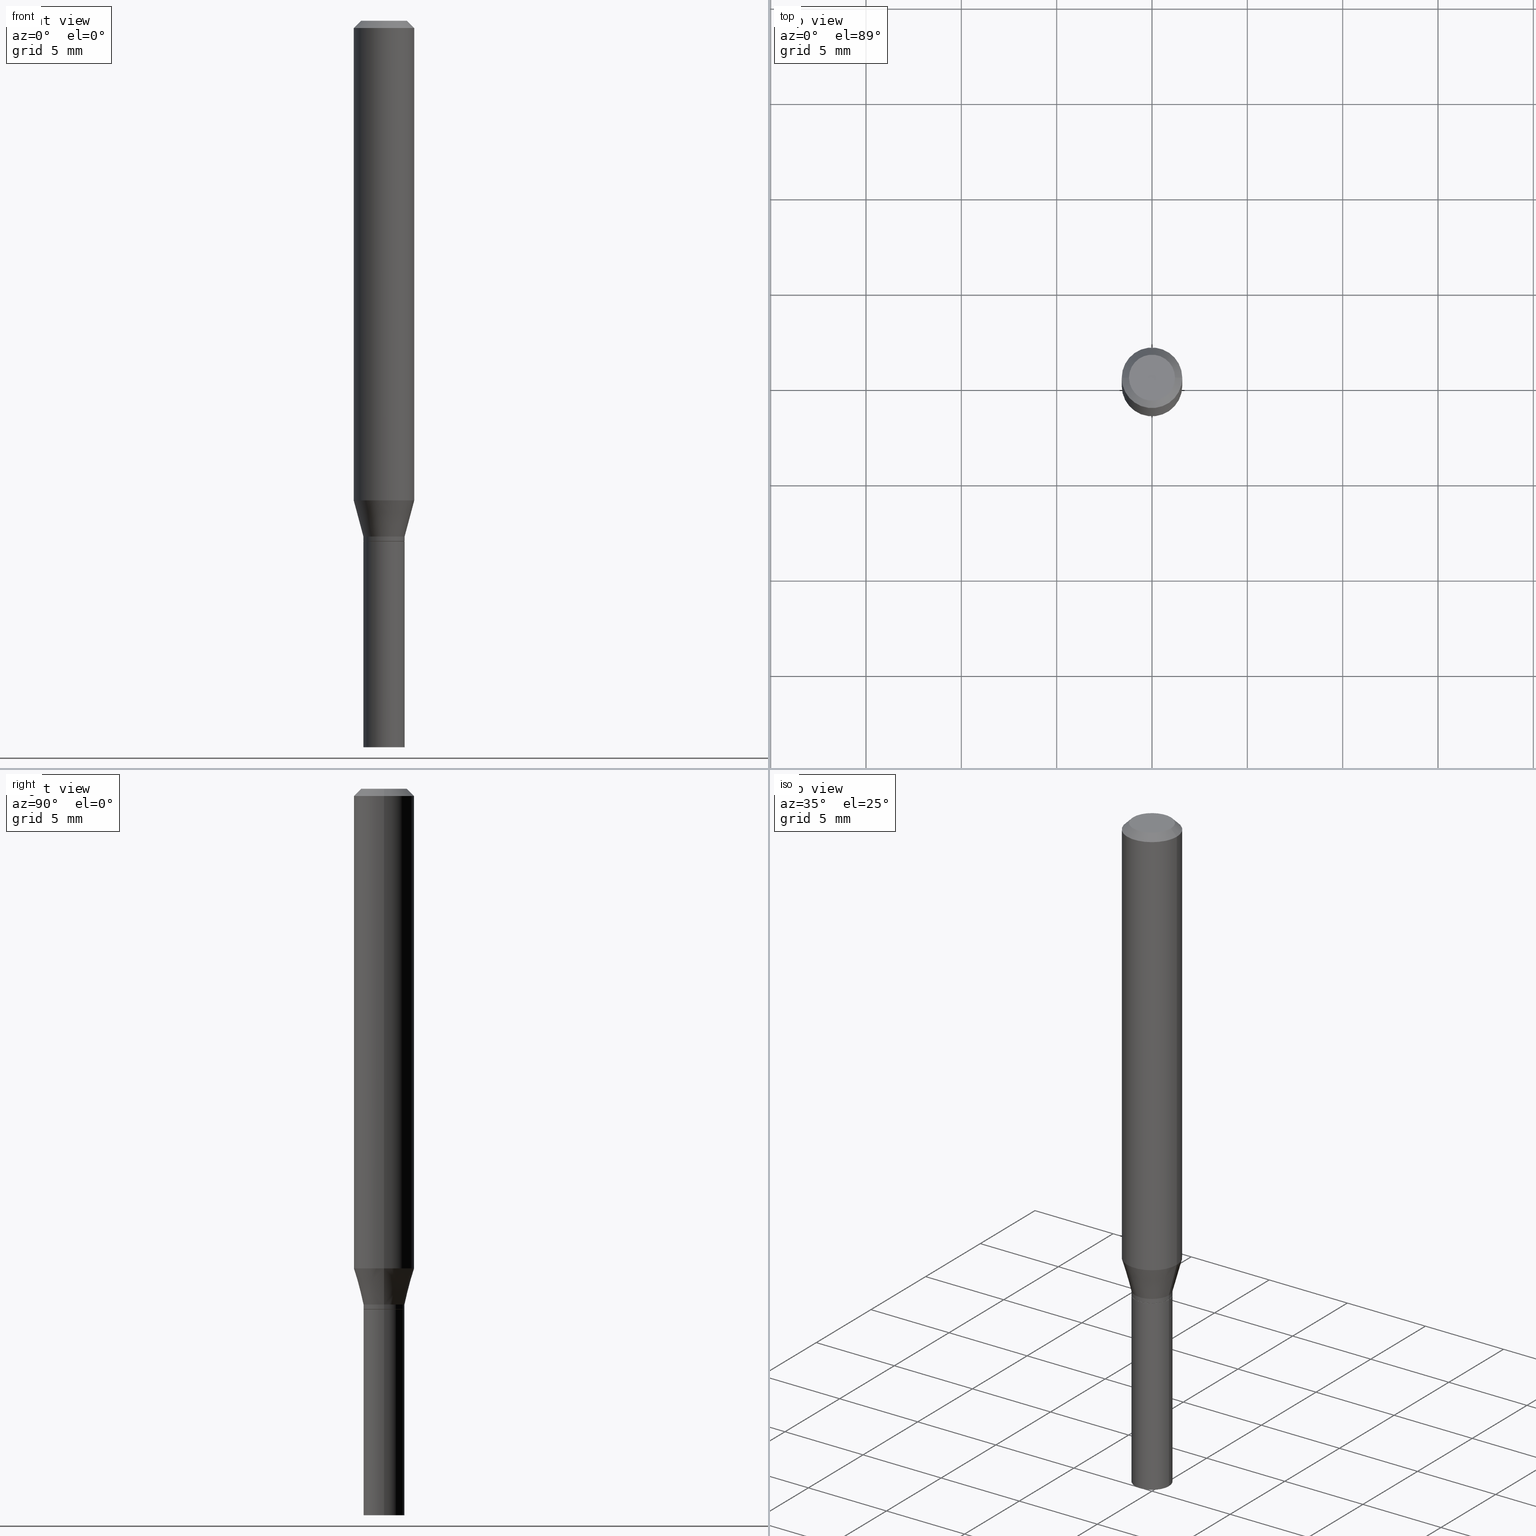
[diagram: canonical four-view strip — front | top / right | iso, engineering-drawing reading convention]
A machine part, canonical four-view strip (front | top / right | iso — engineering-drawing reading convention). The complete STEP part file that produces these views, byte-faithful:
ISO-10303-21;
HEADER;
FILE_DESCRIPTION (( 'STEP AP203' ),
    '1' );
FILE_NAME ('02659.STEP',
    '2024-03-18T21:09:29',
    ( '' ),
    ( '' ),
    'SwSTEP 2.0',
    'SolidWorks 2023',
    '' );
FILE_SCHEMA (( 'CONFIG_CONTROL_DESIGN' ));
ENDSEC;

DATA;
#1 = ADVANCED_FACE ( 'NONE', ( #379 ), #214, .T. ) ;
#2 = DIRECTION ( 'NONE',  ( -2.445468806185136597E-29, 3.491481338843145583E-15, 1.000000000000000000 ) ) ;
#3 = CARTESIAN_POINT ( 'NONE',  ( 2.628878966649022066E-29, -3.753342439256381768E-15, -1.075000000000000178 ) ) ;
#4 = CARTESIAN_POINT ( 'NONE',  ( 2.628878966649022066E-29, -3.753342439256381768E-15, -1.075000000000000178 ) ) ;
#5 = CIRCLE ( 'NONE', #45, 0.04250000000000007938 ) ;
#6 = CARTESIAN_POINT ( 'NONE',  ( 3.668203209277705088E-31, -5.237222008264718399E-17, -0.01499999999999999944 ) ) ;
#7 = DIRECTION ( 'NONE',  ( 1.000000000000000000, -6.982962677686261977E-15, 0.000000000000000000 ) ) ;
#8 = CARTESIAN_POINT ( 'NONE',  ( 2.421892001927016751E-29, -3.457819910863126899E-15, -0.9903589838486228647 ) ) ;
#9 = LINE ( 'NONE', #143, #419 ) ;
#10 = CONICAL_SURFACE ( 'NONE', #64, 0.04250000000000007938, 0.2617993877991496299 ) ;
#11 = CARTESIAN_POINT ( 'NONE',  ( 0.06250000000000000000, -4.888073874380388472E-16, -0.01499999999999999944 ) ) ;
#12 = CARTESIAN_POINT ( 'NONE',  ( 0.000000000000000000, 0.000000000000000000, 0.000000000000000000 ) ) ;
#13 =( LENGTH_UNIT ( ) NAMED_UNIT ( * ) SI_UNIT ( $, .METRE. ) );
#14 = FACE_OUTER_BOUND ( 'NONE', #303, .T. ) ;
#15 = EDGE_CURVE ( 'NONE', #315, #423, #350, .T. ) ;
#16 = VERTEX_POINT ( 'NONE', #330 ) ;
#17 = AXIS2_PLACEMENT_3D ( 'NONE', #280, #92, #186 ) ;
#18 = EDGE_LOOP ( 'NONE', ( #160, #445, #22, #389 ) ) ;
#19 = DIRECTION ( 'NONE',  ( 0.7071067811865656694, -2.468850131082446387E-15, 0.7071067811865294761 ) ) ;
#20 = DIRECTION ( 'NONE',  ( -2.445468806185136597E-29, 3.491481338843145583E-15, 1.000000000000000000 ) ) ;
#21 = ORIENTED_EDGE ( 'NONE', *, *, #200, .T. ) ;
#22 = ORIENTED_EDGE ( 'NONE', *, *, #458, .F. ) ;
#23 = SHAPE_DEFINITION_REPRESENTATION ( #427, #284 ) ;
#24 = APPROVAL_ROLE ( '' ) ;
#25 = VECTOR ( 'NONE', #173, 39.37007874015748143 ) ;
#26 =( GEOMETRIC_REPRESENTATION_CONTEXT ( 3 ) GLOBAL_UNCERTAINTY_ASSIGNED_CONTEXT ( ( #304 ) ) GLOBAL_UNIT_ASSIGNED_CONTEXT ( ( #456, #44, #430 ) ) REPRESENTATION_CONTEXT ( 'NONE', 'WORKASPACE' ) );
#27 = ORIENTED_EDGE ( 'NONE', *, *, #373, .F. ) ;
#28 = ORIENTED_EDGE ( 'NONE', *, *, #165, .T. ) ;
#29 = EDGE_CURVE ( 'NONE', #155, #117, #371, .T. ) ;
#30 = PERSON_AND_ORGANIZATION_ROLE ( 'design_supplier' ) ;
#31 = CC_DESIGN_APPROVAL ( #314, ( #461 ) ) ;
#32 = CARTESIAN_POINT ( 'NONE',  ( 2.604424278587170520E-29, -3.718427625867950118E-15, -1.065000000000000169 ) ) ;
#33 = DIRECTION ( 'NONE',  ( -1.000000000000000000, 6.982962677686266711E-15, 0.000000000000000000 ) ) ;
#34 = EDGE_CURVE ( 'NONE', #69, #16, #9, .T. ) ;
#35 = CARTESIAN_POINT ( 'NONE',  ( 2.604424278587170520E-29, -3.718427625867950118E-15, -1.065000000000000169 ) ) ;
#36 = CARTESIAN_POINT ( 'NONE',  ( 2.627656232245929264E-29, -3.751596698586960264E-15, -1.074500000000000011 ) ) ;
#37 = CONICAL_SURFACE ( 'NONE', #96, 0.04250000000000007938, 0.2617993877991496299 ) ;
#38 = CARTESIAN_POINT ( 'NONE',  ( 3.668203209277705088E-31, -5.237222008264718399E-17, -0.01499999999999999944 ) ) ;
#39 = ORIENTED_EDGE ( 'NONE', *, *, #107, .F. ) ;
#40 = DIRECTION ( 'NONE',  ( 1.000000000000000000, -6.982962677686267499E-15, 4.876176775795935793E-29 ) ) ;
#41 = LINE ( 'NONE', #364, #359 ) ;
#42 = EDGE_CURVE ( 'NONE', #315, #125, #446, .T. ) ;
#43 = CARTESIAN_POINT ( 'NONE',  ( -0.06250000000000000000, 3.840629472727444916E-16, -0.01499999999999999944 ) ) ;
#44 =( NAMED_UNIT ( * ) PLANE_ANGLE_UNIT ( ) SI_UNIT ( $, .RADIAN. ) );
#45 = AXIS2_PLACEMENT_3D ( 'NONE', #407, #249, #7 ) ;
#46 = LOCAL_TIME ( 17, 9, 29.00000000000000000, #197 ) ;
#47 = CC_DESIGN_DATE_AND_TIME_ASSIGNMENT ( #263, #228, ( #402 ) ) ;
#48 = FACE_OUTER_BOUND ( 'NONE', #321, .T. ) ;
#49 = DIRECTION ( 'NONE',  ( 1.000000000000000000, -6.982962677686266711E-15, 4.876176775795935793E-29 ) ) ;
#50 = EDGE_CURVE ( 'NONE', #69, #307, #241, .T. ) ;
#51 = FACE_OUTER_BOUND ( 'NONE', #368, .T. ) ;
#52 = ORIENTED_EDGE ( 'NONE', *, *, #29, .T. ) ;
#53 = DIRECTION ( 'NONE',  ( 2.438088387897960049E-29, -3.491481338843145188E-15, -1.000000000000000000 ) ) ;
#54 = PRODUCT_DEFINITION ( 'UNKNOWN', '', #461, #318 ) ;
#55 = CYLINDRICAL_SURFACE ( 'NONE', #401, 0.04250000000000006550 ) ;
#56 = PERSON_AND_ORGANIZATION ( #198, #148 ) ;
#57 = EDGE_LOOP ( 'NONE', ( #340, #82 ) ) ;
#58 = DIRECTION ( 'NONE',  ( -2.445468806185136597E-29, 3.491481338843145583E-15, 1.000000000000000000 ) ) ;
#59 = APPROVAL_STATUS ( 'not_yet_approved' ) ;
#60 = AXIS2_PLACEMENT_3D ( 'NONE', #286, #110, #146 ) ;
#61 = AXIS2_PLACEMENT_3D ( 'NONE', #138, #329, #283 ) ;
#62 = CALENDAR_DATE ( 2024, 18, 3 ) ;
#63 = FACE_OUTER_BOUND ( 'NONE', #57, .T. ) ;
#64 = AXIS2_PLACEMENT_3D ( 'NONE', #35, #441, #102 ) ;
#65 = EDGE_CURVE ( 'NONE', #159, #16, #207, .T. ) ;
#66 = FACE_OUTER_BOUND ( 'NONE', #429, .T. ) ;
#67 = DIRECTION ( 'NONE',  ( 1.000000000000000000, -6.982962677686263555E-15, 0.000000000000000000 ) ) ;
#68 = LINE ( 'NONE', #206, #25 ) ;
#69 = VERTEX_POINT ( 'NONE', #232 ) ;
#70 = APPROVAL ( #271, 'UNSPECIFIED' ) ;
#71 = LINE ( 'NONE', #245, #226 ) ;
#72 = VECTOR ( 'NONE', #279, 39.37007874015748143 ) ;
#73 = DIRECTION ( 'NONE',  ( -2.445468806185136597E-29, 3.491481338843145583E-15, 1.000000000000000000 ) ) ;
#74 = CYLINDRICAL_SURFACE ( 'NONE', #103, 0.04249999999999999611 ) ;
#75 = FACE_OUTER_BOUND ( 'NONE', #443, .T. ) ;
#76 = ADVANCED_FACE ( 'NONE', ( #267 ), #55, .T. ) ;
#77 = CARTESIAN_POINT ( 'NONE',  ( 0.04249999999999999611, -2.967759138016663549E-16, 2.072375129713272502E-30 ) ) ;
#78 = AXIS2_PLACEMENT_3D ( 'NONE', #412, #302, #295 ) ;
#79 = DIRECTION ( 'NONE',  ( 1.000000000000000000, -6.982962677686263555E-15, 0.000000000000000000 ) ) ;
#80 = PLANE ( 'NONE',  #248 ) ;
#81 = DIRECTION ( 'NONE',  ( -2.445468806185136877E-29, 3.491481338843145188E-15, 1.000000000000000000 ) ) ;
#82 = ORIENTED_EDGE ( 'NONE', *, *, #118, .F. ) ;
#83 = CIRCLE ( 'NONE', #61, 0.04249999999999999611 ) ;
#84 = ORIENTED_EDGE ( 'NONE', *, *, #415, .F. ) ;
#85 = APPROVAL_DATE_TIME ( #236, #70 ) ;
#86 = ORIENTED_EDGE ( 'NONE', *, *, #107, .T. ) ;
#87 = PERSON_AND_ORGANIZATION_ROLE ( 'creator' ) ;
#88 = VERTEX_POINT ( 'NONE', #376 ) ;
#89 = DIRECTION ( 'NONE',  ( 0.000000000000000000, 0.000000000000000000, 1.000000000000000000 ) ) ;
#90 = DIRECTION ( 'NONE',  ( -2.438088387897960049E-29, 3.491481338843145188E-15, 1.000000000000000000 ) ) ;
#91 = VECTOR ( 'NONE', #202, 39.37007874015748143 ) ;
#92 = DIRECTION ( 'NONE',  ( -2.445468806185136597E-29, 3.491481338843145583E-15, 1.000000000000000000 ) ) ;
#93 = CC_DESIGN_PERSON_AND_ORGANIZATION_ASSIGNMENT ( #397, #87, ( #54 ) ) ;
#94 = CARTESIAN_POINT ( 'NONE',  ( -0.06250000000000000000, -1.311006855622824570E-15, -0.01499999999999999944 ) ) ;
#95 = CARTESIAN_POINT ( 'NONE',  ( 0.000000000000000000, 0.000000000000000000, 0.000000000000000000 ) ) ;
#96 = AXIS2_PLACEMENT_3D ( 'NONE', #32, #166, #98 ) ;
#97 = CARTESIAN_POINT ( 'NONE',  ( -0.06250000000000000000, 4.440892098500626162E-16, -3.074334431409316114E-30 ) ) ;
#98 = DIRECTION ( 'NONE',  ( 1.000000000000000000, -6.982962677686261977E-15, 0.000000000000000000 ) ) ;
#99 = CARTESIAN_POINT ( 'NONE',  ( -0.04250000000000007938, -3.215088832091485777E-15, -1.065000000000000169 ) ) ;
#100 = ADVANCED_FACE ( 'NONE', ( #178 ), #333, .T. ) ;
#101 = VERTEX_POINT ( 'NONE', #253 ) ;
#102 = DIRECTION ( 'NONE',  ( 1.000000000000000000, -6.982962677686261977E-15, 0.000000000000000000 ) ) ;
#103 = AXIS2_PLACEMENT_3D ( 'NONE', #451, #20, #220 ) ;
#104 = LOCAL_TIME ( 17, 9, 29.00000000000000000, #390 ) ;
#105 = LINE ( 'NONE', #400, #72 ) ;
#106 = DIRECTION ( 'NONE',  ( -2.445468806185136597E-29, 3.491481338843145583E-15, 1.000000000000000000 ) ) ;
#107 = EDGE_CURVE ( 'NONE', #423, #101, #411, .T. ) ;
#108 = DIRECTION ( 'NONE',  ( 1.000000000000000000, -6.982962677686266711E-15, 4.876176775795935793E-29 ) ) ;
#109 = CARTESIAN_POINT ( 'NONE',  ( 0.06250000000000000000, -4.364351673553916694E-16, 3.047610484872459871E-30 ) ) ;
#110 = DIRECTION ( 'NONE',  ( -2.445468806185136597E-29, 3.491481338843145583E-15, 1.000000000000000000 ) ) ;
#111 = CONICAL_SURFACE ( 'NONE', #172, 0.06250000000000000000, 0.7853981633974450594 ) ;
#112 = CC_DESIGN_SECURITY_CLASSIFICATION ( #402, ( #461 ) ) ;
#113 = ORIENTED_EDGE ( 'NONE', *, *, #42, .F. ) ;
#114 = DIRECTION ( 'NONE',  ( 1.000000000000000000, -6.982962677686267499E-15, 4.884662768193073002E-29 ) ) ;
#115 = ORIENTED_EDGE ( 'NONE', *, *, #406, .F. ) ;
#116 = DIRECTION ( 'NONE',  ( 1.000000000000000000, -6.982962677686266711E-15, 4.876176775795935793E-29 ) ) ;
#117 = VERTEX_POINT ( 'NONE', #94 ) ;
#118 = EDGE_CURVE ( 'NONE', #229, #299, #431, .T. ) ;
#119 = CALENDAR_DATE ( 2024, 18, 3 ) ;
#120 = ORIENTED_EDGE ( 'NONE', *, *, #275, .F. ) ;
#121 = MANIFOLD_SOLID_BREP ( 'Body-Move/Copy2[1]', #162 ) ;
#122 = ORIENTED_EDGE ( 'NONE', *, *, #182, .F. ) ;
#123 = CARTESIAN_POINT ( 'NONE',  ( 0.000000000000000000, 0.000000000000000000, 0.000000000000000000 ) ) ;
#124 = PERSON_AND_ORGANIZATION ( #198, #148 ) ;
#125 = VERTEX_POINT ( 'NONE', #404 ) ;
#126 = APPROVAL_DATE_TIME ( #424, #314 ) ;
#127 = ADVANCED_FACE ( 'NONE', ( #361 ), #37, .T. ) ;
#128 = APPLICATION_PROTOCOL_DEFINITION ( 'international standard', 'config_control_design', 1994, #392 ) ;
#129 = COORDINATED_UNIVERSAL_TIME_OFFSET ( 5, 0, .BEHIND. ) ;
#130 = AXIS2_PLACEMENT_3D ( 'NONE', #6, #2, #136 ) ;
#131 = CARTESIAN_POINT ( 'NONE',  ( -0.04249999999999999611, -4.193301561062507519E-15, -1.500000000000000222 ) ) ;
#132 = DIRECTION ( 'NONE',  ( -2.445468806185136597E-29, 3.491481338843145583E-15, 1.000000000000000000 ) ) ;
#133 = DIRECTION ( 'NONE',  ( -2.445468806185136597E-29, 3.491481338843145583E-15, 1.000000000000000000 ) ) ;
#134 = AXIS2_PLACEMENT_3D ( 'NONE', #4, #436, #442 ) ;
#135 = EDGE_LOOP ( 'NONE', ( #247, #21, #313, #184 ) ) ;
#136 = DIRECTION ( 'NONE',  ( 1.000000000000000000, -6.982962677686266711E-15, 0.000000000000000000 ) ) ;
#137 = ADVANCED_FACE ( 'NONE', ( #203 ), #292, .F. ) ;
#138 = CARTESIAN_POINT ( 'NONE',  ( 2.628878966649022066E-29, -3.753342439256381768E-15, -1.075000000000000178 ) ) ;
#139 = EDGE_LOOP ( 'NONE', ( #113, #413, #86, #342 ) ) ;
#140 = CARTESIAN_POINT ( 'NONE',  ( -0.04199999999999999567, -3.452265263063028618E-15, -1.075000000000000178 ) ) ;
#141 = VECTOR ( 'NONE', #81, 39.37007874015748143 ) ;
#142 = AXIS2_PLACEMENT_3D ( 'NONE', #341, #106, #335 ) ;
#143 = CARTESIAN_POINT ( 'NONE',  ( 0.04250000000000007938, -4.015203539669616769E-15, -1.065000000000000169 ) ) ;
#144 = DIRECTION ( 'NONE',  ( -1.000000000000000000, 6.982962677686265922E-15, -4.876176775795935793E-29 ) ) ;
#145 = ORIENTED_EDGE ( 'NONE', *, *, #200, .F. ) ;
#146 = DIRECTION ( 'NONE',  ( 1.000000000000000000, -6.982962677686276177E-15, 0.000000000000000000 ) ) ;
#147 = AXIS2_PLACEMENT_3D ( 'NONE', #36, #405, #323 ) ;
#148 = ORGANIZATION ( 'UNSPECIFIED', 'UNSPECIFIED', '' ) ;
#149 = DIRECTION ( 'NONE',  ( 1.000000000000000000, -6.982962677686265922E-15, 0.000000000000000000 ) ) ;
#150 = ORIENTED_EDGE ( 'NONE', *, *, #42, .T. ) ;
#151 = EDGE_CURVE ( 'NONE', #380, #155, #287, .T. ) ;
#152 = LENGTH_MEASURE_WITH_UNIT ( LENGTH_MEASURE( 0.02539999999999999897 ), #13 );
#153 = ORIENTED_EDGE ( 'NONE', *, *, #458, .T. ) ;
#154 = EDGE_LOOP ( 'NONE', ( #188, #231, #345, #282 ) ) ;
#155 = VERTEX_POINT ( 'NONE', #219 ) ;
#156 = EDGE_LOOP ( 'NONE', ( #377, #268 ) ) ;
#157 = EDGE_CURVE ( 'NONE', #159, #117, #363, .T. ) ;
#158 = APPROVAL_ROLE ( '' ) ;
#159 = VERTEX_POINT ( 'NONE', #174 ) ;
#160 = ORIENTED_EDGE ( 'NONE', *, *, #169, .T. ) ;
#161 = DIRECTION ( 'NONE',  ( 1.000000000000000000, 0.000000000000000000, 0.000000000000000000 ) ) ;
#162 = CLOSED_SHELL ( 'NONE', ( #435, #137, #1, #434 ) ) ;
#163 = SECURITY_CLASSIFICATION_LEVEL ( 'unclassified' ) ;
#164 = CONICAL_SURFACE ( 'NONE', #325, 0.06250000000000000000, 0.7853981633974450594 ) ;
#165 = EDGE_CURVE ( 'NONE', #101, #125, #83, .T. ) ;
#166 = DIRECTION ( 'NONE',  ( -2.445468806185136597E-29, 3.491481338843145583E-15, 1.000000000000000000 ) ) ;
#167 = FACE_OUTER_BOUND ( 'NONE', #154, .T. ) ;
#168 = DIRECTION ( 'NONE',  ( -2.445468806185136597E-29, 3.491481338843145583E-15, 1.000000000000000000 ) ) ;
#169 = EDGE_CURVE ( 'NONE', #16, #159, #273, .T. ) ;
#170 = AXIS2_PLACEMENT_3D ( 'NONE', #336, #297, #40 ) ;
#171 = DIRECTION ( 'NONE',  ( -0.2588190451025209615, 5.211531920934547097E-15, 0.9659258262890682012 ) ) ;
#172 = AXIS2_PLACEMENT_3D ( 'NONE', #38, #439, #33 ) ;
#173 = DIRECTION ( 'NONE',  ( 0.7071067811865452413, -7.319954787623248157E-15, -0.7071067811865497932 ) ) ;
#174 = CARTESIAN_POINT ( 'NONE',  ( -0.06250000000000000000, -3.013730701013064283E-15, -0.9903589838486228647 ) ) ;
#175 = DIRECTION ( 'NONE',  ( -0.7071067811865452413, 2.468850131082233000E-15, -0.7071067811865497932 ) ) ;
#176 = DIRECTION ( 'NONE',  ( -2.445468806185136877E-29, 3.491481338843145188E-15, 1.000000000000000000 ) ) ;
#177 = VECTOR ( 'NONE', #175, 39.37007874015748143 ) ;
#178 = FACE_OUTER_BOUND ( 'NONE', #301, .T. ) ;
#179 = DIRECTION ( 'NONE',  ( -2.445468806185136597E-29, 3.491481338843145583E-15, 1.000000000000000000 ) ) ;
#180 = CARTESIAN_POINT ( 'NONE',  ( 0.04250000000000006550, -2.967759138016667987E-16, 2.072375129713276005E-30 ) ) ;
#181 = ORIENTED_EDGE ( 'NONE', *, *, #343, .T. ) ;
#182 = EDGE_CURVE ( 'NONE', #307, #159, #41, .T. ) ;
#183 = AXIS2_PLACEMENT_3D ( 'NONE', #261, #447, #114 ) ;
#184 = ORIENTED_EDGE ( 'NONE', *, *, #328, .F. ) ;
#185 = AXIS2_PLACEMENT_3D ( 'NONE', #223, #251, #79 ) ;
#186 = DIRECTION ( 'NONE',  ( 1.000000000000000000, -6.982962677686267499E-15, 4.884662768193073002E-29 ) ) ;
#187 = DIRECTION ( 'NONE',  ( 2.438088387897960049E-29, -3.491481338843145188E-15, -1.000000000000000000 ) ) ;
#188 = ORIENTED_EDGE ( 'NONE', *, *, #157, .F. ) ;
#189 = DIRECTION ( 'NONE',  ( -2.445468806185136597E-29, 3.491481338843145583E-15, 1.000000000000000000 ) ) ;
#190 = ORIENTED_EDGE ( 'NONE', *, *, #50, .T. ) ;
#191 = COORDINATED_UNIVERSAL_TIME_OFFSET ( 5, 0, .BEHIND. ) ;
#192 = DATE_AND_TIME ( #357, #104 ) ;
#193 = ORIENTED_EDGE ( 'NONE', *, *, #118, .T. ) ;
#194 = AXIS2_PLACEMENT_3D ( 'NONE', #464, #90, #398 ) ;
#195 = CALENDAR_DATE ( 2024, 18, 3 ) ;
#196 = ORIENTED_EDGE ( 'NONE', *, *, #205, .F. ) ;
#197 = COORDINATED_UNIVERSAL_TIME_OFFSET ( 5, 0, .BEHIND. ) ;
#198 = PERSON ( 'UNSPECIFIED', 'UNSPECIFIED', 'UNSPECIFIED', ('UNSPECIFIED'), ('UNSPECIFIED'), ('UNSPECIFIED') ) ;
#199 = PERSON_AND_ORGANIZATION_ROLE ( 'design_owner' ) ;
#200 = EDGE_CURVE ( 'NONE', #229, #260, #105, .T. ) ;
#201 = AXIS2_PLACEMENT_3D ( 'NONE', #308, #386, #457 ) ;
#202 = DIRECTION ( 'NONE',  ( -2.445468806185136877E-29, 3.491481338843145188E-15, 1.000000000000000000 ) ) ;
#203 = FACE_OUTER_BOUND ( 'NONE', #156, .T. ) ;
#204 = DIRECTION ( 'NONE',  ( 1.000000000000000000, -6.982962677686266711E-15, 4.876176775795935793E-29 ) ) ;
#205 = EDGE_CURVE ( 'NONE', #260, #307, #71, .T. ) ;
#206 = CARTESIAN_POINT ( 'NONE',  ( 0.06250000000000000000, -4.811533449433679005E-16, -0.01499999999999999944 ) ) ;
#207 = CIRCLE ( 'NONE', #201, 0.06250000000000000000 ) ;
#208 = CARTESIAN_POINT ( 'NONE',  ( -0.04250000000000005856, -3.449616035888917417E-15, -1.074500000000000011 ) ) ;
#209 = ORIENTED_EDGE ( 'NONE', *, *, #244, .T. ) ;
#210 = AXIS2_PLACEMENT_3D ( 'NONE', #259, #179, #149 ) ;
#211 = CARTESIAN_POINT ( 'NONE',  ( 2.628878966649022066E-29, -3.753342439256381768E-15, -1.075000000000000178 ) ) ;
#212 = ORIENTED_EDGE ( 'NONE', *, *, #285, .T. ) ;
#213 = DIRECTION ( 'NONE',  ( -2.445468806185136597E-29, 3.491481338843145583E-15, 1.000000000000000000 ) ) ;
#214 = CYLINDRICAL_SURFACE ( 'NONE', #170, 0.04249999999999999611 ) ;
#215 = CARTESIAN_POINT ( 'NONE',  ( 3.668203209277704895E-29, -5.237222008264718177E-15, -1.500000000000000222 ) ) ;
#216 = AXIS2_PLACEMENT_3D ( 'NONE', #211, #403, #246 ) ;
#217 = CONICAL_SURFACE ( 'NONE', #185, 0.04199999999999999567, 0.7853981633974739252 ) ;
#218 = DIRECTION ( 'NONE',  ( -2.445468806185136877E-29, 3.491481338843145188E-15, 1.000000000000000000 ) ) ;
#219 = CARTESIAN_POINT ( 'NONE',  ( -0.04749999999999999362, 3.578768372314212971E-16, 9.926955091278110846E-17 ) ) ;
#220 = DIRECTION ( 'NONE',  ( 1.000000000000000000, -6.982962677686267499E-15, 4.876176775795935793E-29 ) ) ;
#221 = ADVANCED_FACE ( 'NONE', ( #63 ), #409, .F. ) ;
#222 = ORIENTED_EDGE ( 'NONE', *, *, #50, .F. ) ;
#223 = CARTESIAN_POINT ( 'NONE',  ( 2.628878966649022066E-29, -3.753342439256381768E-15, -1.075000000000000178 ) ) ;
#224 = ORIENTED_EDGE ( 'NONE', *, *, #182, .T. ) ;
#225 = CARTESIAN_POINT ( 'NONE',  ( 0.04749999999999999362, -4.035134999187576651E-16, 9.926955091278610047E-17 ) ) ;
#226 = VECTOR ( 'NONE', #243, 39.37007874015748143 ) ;
#227 = DIRECTION ( 'NONE',  ( 1.000000000000000000, -6.982962677686261977E-15, 0.000000000000000000 ) ) ;
#228 = DATE_TIME_ROLE ( 'classification_date' ) ;
#229 = VERTEX_POINT ( 'NONE', #140 ) ;
#230 = APPROVAL ( #59, 'UNSPECIFIED' ) ;
#231 = ORIENTED_EDGE ( 'NONE', *, *, #65, .T. ) ;
#232 = CARTESIAN_POINT ( 'NONE',  ( 0.04250000000000007938, -4.015203539669616769E-15, -1.065000000000000169 ) ) ;
#233 = EDGE_LOOP ( 'NONE', ( #196, #349, #420, #378 ) ) ;
#234 = PERSON_AND_ORGANIZATION ( #198, #148 ) ;
#235 = CIRCLE ( 'NONE', #324, 0.04249999999999999611 ) ;
#236 = DATE_AND_TIME ( #62, #266 ) ;
#237 = ADVANCED_FACE ( 'NONE', ( #370 ), #242, .T. ) ;
#238 = ADVANCED_FACE ( 'NONE', ( #362 ), #10, .T. ) ;
#239 = CALENDAR_DATE ( 2024, 18, 3 ) ;
#240 = APPLICATION_CONTEXT ( 'configuration controlled 3d designs of mechanical parts and assemblies' ) ;
#241 = CIRCLE ( 'NONE', #393, 0.04250000000000007938 ) ;
#242 = CONICAL_SURFACE ( 'NONE', #216, 0.04199999999999999567, 0.7853981633974739252 ) ;
#243 = DIRECTION ( 'NONE',  ( -2.445468806185136877E-29, 3.491481338843145188E-15, 1.000000000000000000 ) ) ;
#244 = EDGE_CURVE ( 'NONE', #125, #101, #235, .T. ) ;
#245 = CARTESIAN_POINT ( 'NONE',  ( -0.04250000000000006550, 3.019806626980430444E-16, -2.090547413358338362E-30 ) ) ;
#246 = DIRECTION ( 'NONE',  ( 1.000000000000000000, -6.982962677686263555E-15, 0.000000000000000000 ) ) ;
#247 = ORIENTED_EDGE ( 'NONE', *, *, #384, .T. ) ;
#248 = AXIS2_PLACEMENT_3D ( 'NONE', #372, #187, #374 ) ;
#249 = DIRECTION ( 'NONE',  ( -2.445468806185136597E-29, 3.491481338843145583E-15, 1.000000000000000000 ) ) ;
#250 = ADVANCED_FACE ( 'NONE', ( #66 ), #111, .T. ) ;
#251 = DIRECTION ( 'NONE',  ( -2.445468806185136597E-29, 3.491481338843145583E-15, 1.000000000000000000 ) ) ;
#252 = DIRECTION ( 'NONE',  ( -2.445468806185136597E-29, 3.491481338843145583E-15, 1.000000000000000000 ) ) ;
#253 = CARTESIAN_POINT ( 'NONE',  ( 0.04249999999999999611, -4.050118353058048418E-15, -1.075000000000000178 ) ) ;
#254 = CARTESIAN_POINT ( 'NONE',  ( 0.04249999999999999611, -5.533997922066385616E-15, -1.500000000000000222 ) ) ;
#255 = CLOSED_SHELL ( 'NONE', ( #100, #237, #440, #317, #238, #127, #257, #250, #425, #221, #453, #76 ) ) ;
#256 = VECTOR ( 'NONE', #218, 39.37007874015748143 ) ;
#257 = ADVANCED_FACE ( 'NONE', ( #167 ), #322, .T. ) ;
#258 = CIRCLE ( 'NONE', #142, 0.06250000000000000000 ) ;
#259 = CARTESIAN_POINT ( 'NONE',  ( 2.627656232245929264E-29, -3.751596698586960264E-15, -1.074500000000000011 ) ) ;
#260 = VERTEX_POINT ( 'NONE', #208 ) ;
#261 = CARTESIAN_POINT ( 'NONE',  ( -2.427605901612193195E-45, 3.465977845273231710E-31, 9.926955091278351202E-17 ) ) ;
#262 = CARTESIAN_POINT ( 'NONE',  ( -0.04249999999999999611, 3.019806626980425514E-16, -2.090547413358334859E-30 ) ) ;
#263 = DATE_AND_TIME ( #119, #360 ) ;
#264 = EDGE_LOOP ( 'NONE', ( #309, #355 ) ) ;
#265 = CIRCLE ( 'NONE', #130, 0.06250000000000000000 ) ;
#266 = LOCAL_TIME ( 17, 9, 29.00000000000000000, #433 ) ;
#267 = FACE_OUTER_BOUND ( 'NONE', #233, .T. ) ;
#268 = ORIENTED_EDGE ( 'NONE', *, *, #15, .F. ) ;
#269 = ORIENTED_EDGE ( 'NONE', *, *, #29, .F. ) ;
#270 = PERSON_AND_ORGANIZATION ( #198, #148 ) ;
#271 = APPROVAL_STATUS ( 'not_yet_approved' ) ;
#272 = EDGE_CURVE ( 'NONE', #88, #260, #300, .T. ) ;
#273 = CIRCLE ( 'NONE', #450, 0.06250000000000000000 ) ;
#274 = APPLICATION_PROTOCOL_DEFINITION ( 'international standard', 'config_control_design', 1994, #240 ) ;
#275 = EDGE_CURVE ( 'NONE', #380, #417, #68, .T. ) ;
#276 = FACE_OUTER_BOUND ( 'NONE', #18, .T. ) ;
#277 = CIRCLE ( 'NONE', #210, 0.04250000000000005856 ) ;
#278 = APPROVAL_PERSON_ORGANIZATION ( #56, #314, #158 ) ;
#279 = DIRECTION ( 'NONE',  ( -0.7071067811865656694, 7.493145998870420424E-15, 0.7071067811865294761 ) ) ;
#280 = CARTESIAN_POINT ( 'NONE',  ( -2.427605901612193195E-45, 3.465977845273231710E-31, 9.926955091278351202E-17 ) ) ;
#281 = CARTESIAN_POINT ( 'NONE',  ( 0.04199999999999999567, -4.046626871719205411E-15, -1.075000000000000178 ) ) ;
#282 = ORIENTED_EDGE ( 'NONE', *, *, #296, .F. ) ;
#283 = DIRECTION ( 'NONE',  ( 1.000000000000000000, -6.982962677686265133E-15, 0.000000000000000000 ) ) ;
#284 = ADVANCED_BREP_SHAPE_REPRESENTATION ( '02659', ( #121, #437, #366 ), #26 ) ;
#285 = EDGE_CURVE ( 'NONE', #307, #69, #5, .T. ) ;
#286 = CARTESIAN_POINT ( 'NONE',  ( 3.668203209277704895E-29, -5.237222008264718177E-15, -1.500000000000000222 ) ) ;
#287 = CIRCLE ( 'NONE', #17, 0.04749999999999999362 ) ;
#288 = CARTESIAN_POINT ( 'NONE',  ( 2.628878966649022066E-29, -3.753342439256381768E-15, -1.075000000000000178 ) ) ;
#289 = CC_DESIGN_APPROVAL ( #230, ( #402 ) ) ;
#290 = DIRECTION ( 'NONE',  ( 0.2588190451025209615, 1.565188264969624926E-15, 0.9659258262890682012 ) ) ;
#291 = CARTESIAN_POINT ( 'NONE',  ( 0.04199999999999999567, -4.046626871719205411E-15, -1.075000000000000178 ) ) ;
#292 = PLANE ( 'NONE',  #194 ) ;
#293 = CC_DESIGN_PERSON_AND_ORGANIZATION_ASSIGNMENT ( #270, #30, ( #461 ) ) ;
#294 = DIRECTION ( 'NONE',  ( -2.445468806185136597E-29, 3.491481338843145583E-15, 1.000000000000000000 ) ) ;
#295 = DIRECTION ( 'NONE',  ( 1.000000000000000000, -6.982962677686263555E-15, 0.000000000000000000 ) ) ;
#296 = EDGE_CURVE ( 'NONE', #117, #417, #265, .T. ) ;
#297 = DIRECTION ( 'NONE',  ( -2.445468806185136597E-29, 3.491481338843145583E-15, 1.000000000000000000 ) ) ;
#298 = LINE ( 'NONE', #109, #141 ) ;
#299 = VERTEX_POINT ( 'NONE', #281 ) ;
#300 = CIRCLE ( 'NONE', #147, 0.04250000000000005856 ) ;
#301 = EDGE_LOOP ( 'NONE', ( #387, #394, #222, #115 ) ) ;
#302 = DIRECTION ( 'NONE',  ( -2.445468806185136597E-29, 3.491481338843145583E-15, 1.000000000000000000 ) ) ;
#303 = EDGE_LOOP ( 'NONE', ( #145, #193, #365, #27 ) ) ;
#304 = UNCERTAINTY_MEASURE_WITH_UNIT (LENGTH_MEASURE( 1.000000000000000082E-05 ), #456, 'distance_accuracy_value', 'NONE');
#305 = PRODUCT_RELATED_PRODUCT_CATEGORY ( 'detail', '', ( #310 ) ) ;
#306 = CARTESIAN_POINT ( 'NONE',  ( 3.668203209277705088E-31, -5.237222008264718399E-17, -0.01499999999999999944 ) ) ;
#307 = VERTEX_POINT ( 'NONE', #99 ) ;
#308 = CARTESIAN_POINT ( 'NONE',  ( 2.421892001927016751E-29, -3.457819910863126899E-15, -0.9903589838486228647 ) ) ;
#309 = ORIENTED_EDGE ( 'NONE', *, *, #415, .T. ) ;
#310 = PRODUCT ( '02659', '02659', '', ( #462 ) ) ;
#311 = AXIS2_PLACEMENT_3D ( 'NONE', #327, #213, #116 ) ;
#312 = ORIENTED_EDGE ( 'NONE', *, *, #34, .F. ) ;
#313 = ORIENTED_EDGE ( 'NONE', *, *, #272, .F. ) ;
#314 = APPROVAL ( #348, 'UNSPECIFIED' ) ;
#315 = VERTEX_POINT ( 'NONE', #131 ) ;
#316 = PERSON_AND_ORGANIZATION ( #198, #148 ) ;
#317 = ADVANCED_FACE ( 'NONE', ( #276 ), #367, .T. ) ;
#318 = DESIGN_CONTEXT ( 'detailed design', #392, 'design' ) ;
#319 = CC_DESIGN_APPROVAL ( #70, ( #54 ) ) ;
#320 = PERSON_AND_ORGANIZATION ( #198, #148 ) ;
#321 = EDGE_LOOP ( 'NONE', ( #381, #452, #153, #269 ) ) ;
#322 = CYLINDRICAL_SURFACE ( 'NONE', #421, 0.06250000000000000000 ) ;
#323 = DIRECTION ( 'NONE',  ( 1.000000000000000000, -6.982962677686265922E-15, 0.000000000000000000 ) ) ;
#324 = AXIS2_PLACEMENT_3D ( 'NONE', #288, #133, #326 ) ;
#325 = AXIS2_PLACEMENT_3D ( 'NONE', #306, #337, #414 ) ;
#326 = DIRECTION ( 'NONE',  ( 1.000000000000000000, -6.982962677686265133E-15, 0.000000000000000000 ) ) ;
#327 = CARTESIAN_POINT ( 'NONE',  ( 0.000000000000000000, 0.000000000000000000, 0.000000000000000000 ) ) ;
#328 = EDGE_CURVE ( 'NONE', #299, #88, #448, .T. ) ;
#329 = DIRECTION ( 'NONE',  ( -2.445468806185136597E-29, 3.491481338843145583E-15, 1.000000000000000000 ) ) ;
#330 = CARTESIAN_POINT ( 'NONE',  ( 0.06250000000000000000, -3.894255078218518174E-15, -0.9903589838486228647 ) ) ;
#331 = CIRCLE ( 'NONE', #78, 0.04199999999999999567 ) ;
#332 = LINE ( 'NONE', #180, #351 ) ;
#333 = CYLINDRICAL_SURFACE ( 'NONE', #438, 0.04250000000000006550 ) ;
#334 = CC_DESIGN_PERSON_AND_ORGANIZATION_ASSIGNMENT ( #234, #465, ( #461 ) ) ;
#335 = DIRECTION ( 'NONE',  ( 1.000000000000000000, -6.982962677686266711E-15, 0.000000000000000000 ) ) ;
#336 = CARTESIAN_POINT ( 'NONE',  ( 0.000000000000000000, 0.000000000000000000, 0.000000000000000000 ) ) ;
#337 = DIRECTION ( 'NONE',  ( 2.445468806185136597E-29, -3.491481338843145583E-15, -1.000000000000000000 ) ) ;
#338 = EDGE_LOOP ( 'NONE', ( #122, #212, #347, #382 ) ) ;
#339 = CIRCLE ( 'NONE', #460, 0.04249999999999999611 ) ;
#340 = ORIENTED_EDGE ( 'NONE', *, *, #384, .F. ) ;
#341 = CARTESIAN_POINT ( 'NONE',  ( 3.668203209277705088E-31, -5.237222008264718399E-17, -0.01499999999999999944 ) ) ;
#342 = ORIENTED_EDGE ( 'NONE', *, *, #244, .F. ) ;
#343 = EDGE_CURVE ( 'NONE', #423, #315, #339, .T. ) ;
#344 = ORIENTED_EDGE ( 'NONE', *, *, #169, .F. ) ;
#345 = ORIENTED_EDGE ( 'NONE', *, *, #353, .T. ) ;
#346 = DATE_AND_TIME ( #195, #375 ) ;
#347 = ORIENTED_EDGE ( 'NONE', *, *, #34, .T. ) ;
#348 = APPROVAL_STATUS ( 'not_yet_approved' ) ;
#349 = ORIENTED_EDGE ( 'NONE', *, *, #373, .T. ) ;
#350 = CIRCLE ( 'NONE', #60, 0.04249999999999999611 ) ;
#351 = VECTOR ( 'NONE', #176, 39.37007874015748143 ) ;
#352 = DIMENSIONAL_EXPONENTS ( 1.000000000000000000, 0.000000000000000000, 0.000000000000000000, 0.000000000000000000, 0.000000000000000000, 0.000000000000000000, 0.000000000000000000 ) ;
#353 = EDGE_CURVE ( 'NONE', #16, #417, #298, .T. ) ;
#354 = APPROVAL_DATE_TIME ( #346, #230 ) ;
#355 = ORIENTED_EDGE ( 'NONE', *, *, #151, .T. ) ;
#356 = PERSON_AND_ORGANIZATION_ROLE ( 'classification_officer' ) ;
#357 = CALENDAR_DATE ( 2024, 18, 3 ) ;
#358 = CC_DESIGN_PERSON_AND_ORGANIZATION_ASSIGNMENT ( #320, #356, ( #402 ) ) ;
#359 = VECTOR ( 'NONE', #171, 39.37007874015748143 ) ;
#360 = LOCAL_TIME ( 17, 9, 29.00000000000000000, #129 ) ;
#361 = FACE_OUTER_BOUND ( 'NONE', #338, .T. ) ;
#362 = FACE_OUTER_BOUND ( 'NONE', #385, .T. ) ;
#363 = LINE ( 'NONE', #97, #91 ) ;
#364 = CARTESIAN_POINT ( 'NONE',  ( -0.04250000000000007938, -3.416446963169907271E-15, -1.065000000000000169 ) ) ;
#365 = ORIENTED_EDGE ( 'NONE', *, *, #328, .T. ) ;
#366 = AXIS2_PLACEMENT_3D ( 'NONE', #463, #89, #161 ) ;
#367 = CYLINDRICAL_SURFACE ( 'NONE', #311, 0.06250000000000000000 ) ;
#368 = EDGE_LOOP ( 'NONE', ( #181, #150, #455, #39 ) ) ;
#369 = ORIENTED_EDGE ( 'NONE', *, *, #296, .T. ) ;
#370 = FACE_OUTER_BOUND ( 'NONE', #135, .T. ) ;
#371 = LINE ( 'NONE', #43, #177 ) ;
#372 = CARTESIAN_POINT ( 'NONE',  ( 2.967759138016925352E-16, 0.04249999999999624217, -1.075000000000000178 ) ) ;
#373 = EDGE_CURVE ( 'NONE', #260, #88, #277, .T. ) ;
#374 = DIRECTION ( 'NONE',  ( -1.000000000000000000, 6.982962677686265922E-15, -4.876176775795935793E-29 ) ) ;
#375 = LOCAL_TIME ( 17, 9, 29.00000000000000000, #191 ) ;
#376 = CARTESIAN_POINT ( 'NONE',  ( 0.04250000000000005856, -4.048372612388626915E-15, -1.074500000000000011 ) ) ;
#377 = ORIENTED_EDGE ( 'NONE', *, *, #343, .F. ) ;
#378 = ORIENTED_EDGE ( 'NONE', *, *, #285, .F. ) ;
#379 = FACE_OUTER_BOUND ( 'NONE', #139, .T. ) ;
#380 = VERTEX_POINT ( 'NONE', #225 ) ;
#381 = ORIENTED_EDGE ( 'NONE', *, *, #151, .F. ) ;
#382 = ORIENTED_EDGE ( 'NONE', *, *, #65, .F. ) ;
#383 = CARTESIAN_POINT ( 'NONE',  ( 3.316907271900976096E-16, 0.04749999999999999362, -1.162105881386576343E-16 ) ) ;
#384 = EDGE_CURVE ( 'NONE', #299, #229, #331, .T. ) ;
#385 = EDGE_LOOP ( 'NONE', ( #190, #224, #344, #312 ) ) ;
#386 = DIRECTION ( 'NONE',  ( -2.445468806185136597E-29, 3.491481338843145583E-15, 1.000000000000000000 ) ) ;
#387 = ORIENTED_EDGE ( 'NONE', *, *, #272, .T. ) ;
#388 = APPROVAL_ROLE ( '' ) ;
#389 = ORIENTED_EDGE ( 'NONE', *, *, #353, .F. ) ;
#390 = COORDINATED_UNIVERSAL_TIME_OFFSET ( 5, 0, .BEHIND. ) ;
#391 = CARTESIAN_POINT ( 'NONE',  ( 2.604424278587170520E-29, -3.718427625867950118E-15, -1.065000000000000169 ) ) ;
#392 = APPLICATION_CONTEXT ( 'configuration controlled 3d designs of mechanical parts and assemblies' ) ;
#393 = AXIS2_PLACEMENT_3D ( 'NONE', #391, #58, #227 ) ;
#394 = ORIENTED_EDGE ( 'NONE', *, *, #205, .T. ) ;
#395 = AXIS2_PLACEMENT_3D ( 'NONE', #3, #132, #67 ) ;
#396 = APPROVAL_PERSON_ORGANIZATION ( #124, #230, #388 ) ;
#397 = PERSON_AND_ORGANIZATION ( #198, #148 ) ;
#398 = DIRECTION ( 'NONE',  ( 1.000000000000000000, -6.982962677686265922E-15, 4.876176775795935793E-29 ) ) ;
#399 = PERSON_AND_ORGANIZATION ( #198, #148 ) ;
#400 = CARTESIAN_POINT ( 'NONE',  ( -0.04199999999999999567, -3.454914490237140213E-15, -1.075000000000000178 ) ) ;
#401 = AXIS2_PLACEMENT_3D ( 'NONE', #123, #189, #49 ) ;
#402 = SECURITY_CLASSIFICATION ( '', '', #163 ) ;
#403 = DIRECTION ( 'NONE',  ( -2.445468806185136597E-29, 3.491481338843145583E-15, 1.000000000000000000 ) ) ;
#404 = CARTESIAN_POINT ( 'NONE',  ( -0.04249999999999999611, -4.193301561062507519E-15, -1.075000000000000178 ) ) ;
#405 = DIRECTION ( 'NONE',  ( -2.445468806185136597E-29, 3.491481338843145583E-15, 1.000000000000000000 ) ) ;
#406 = EDGE_CURVE ( 'NONE', #88, #69, #332, .T. ) ;
#407 = CARTESIAN_POINT ( 'NONE',  ( 2.604424278587170520E-29, -3.718427625867950118E-15, -1.065000000000000169 ) ) ;
#408 = CIRCLE ( 'NONE', #183, 0.04749999999999999362 ) ;
#409 = PLANE ( 'NONE',  #134 ) ;
#410 = PLANE ( 'NONE',  #466 ) ;
#411 = LINE ( 'NONE', #77, #256 ) ;
#412 = CARTESIAN_POINT ( 'NONE',  ( 2.628878966649022066E-29, -3.753342439256381768E-15, -1.075000000000000178 ) ) ;
#413 = ORIENTED_EDGE ( 'NONE', *, *, #15, .T. ) ;
#414 = DIRECTION ( 'NONE',  ( -1.000000000000000000, 6.982962677686266711E-15, 0.000000000000000000 ) ) ;
#415 = EDGE_CURVE ( 'NONE', #155, #380, #408, .T. ) ;
#416 = FACE_OUTER_BOUND ( 'NONE', #264, .T. ) ;
#417 = VERTEX_POINT ( 'NONE', #11 ) ;
#418 = DIRECTION ( 'NONE',  ( -2.445468806185136877E-29, 3.491481338843145188E-15, 1.000000000000000000 ) ) ;
#419 = VECTOR ( 'NONE', #290, 39.37007874015748143 ) ;
#420 = ORIENTED_EDGE ( 'NONE', *, *, #406, .T. ) ;
#421 = AXIS2_PLACEMENT_3D ( 'NONE', #95, #168, #204 ) ;
#422 = APPROVAL_PERSON_ORGANIZATION ( #399, #70, #24 ) ;
#423 = VERTEX_POINT ( 'NONE', #254 ) ;
#424 = DATE_AND_TIME ( #239, #46 ) ;
#425 = ADVANCED_FACE ( 'NONE', ( #416 ), #410, .F. ) ;
#426 = CC_DESIGN_PERSON_AND_ORGANIZATION_ASSIGNMENT ( #316, #199, ( #310 ) ) ;
#427 = PRODUCT_DEFINITION_SHAPE ( 'NONE', 'NONE',  #54 ) ;
#428 = DATE_TIME_ROLE ( 'creation_date' ) ;
#429 = EDGE_LOOP ( 'NONE', ( #120, #84, #52, #369 ) ) ;
#430 =( NAMED_UNIT ( * ) SI_UNIT ( $, .STERADIAN. ) SOLID_ANGLE_UNIT ( ) );
#431 = CIRCLE ( 'NONE', #395, 0.04199999999999999567 ) ;
#432 = VECTOR ( 'NONE', #19, 39.37007874015748143 ) ;
#433 = COORDINATED_UNIVERSAL_TIME_OFFSET ( 5, 0, .BEHIND. ) ;
#434 = ADVANCED_FACE ( 'NONE', ( #75 ), #80, .F. ) ;
#435 = ADVANCED_FACE ( 'NONE', ( #51 ), #74, .T. ) ;
#436 = DIRECTION ( 'NONE',  ( -2.438088387897960049E-29, 3.491481338843145188E-15, 1.000000000000000000 ) ) ;
#437 = MANIFOLD_SOLID_BREP ( 'Body-Move/Copy2[2]', #255 ) ;
#438 = AXIS2_PLACEMENT_3D ( 'NONE', #12, #294, #108 ) ;
#439 = DIRECTION ( 'NONE',  ( 2.445468806185136597E-29, -3.491481338843145583E-15, -1.000000000000000000 ) ) ;
#440 = ADVANCED_FACE ( 'NONE', ( #48 ), #164, .T. ) ;
#441 = DIRECTION ( 'NONE',  ( -2.445468806185136597E-29, 3.491481338843145583E-15, 1.000000000000000000 ) ) ;
#442 = DIRECTION ( 'NONE',  ( 1.000000000000000000, -6.982962677686265922E-15, 4.876176775795935793E-29 ) ) ;
#443 = EDGE_LOOP ( 'NONE', ( #28, #209 ) ) ;
#444 = DIRECTION ( 'NONE',  ( 1.000000000000000000, -6.982962677686262766E-15, 0.000000000000000000 ) ) ;
#445 = ORIENTED_EDGE ( 'NONE', *, *, #157, .T. ) ;
#446 = LINE ( 'NONE', #262, #459 ) ;
#447 = DIRECTION ( 'NONE',  ( -2.445468806185136597E-29, 3.491481338843145583E-15, 1.000000000000000000 ) ) ;
#448 = LINE ( 'NONE', #291, #432 ) ;
#449 = CC_DESIGN_DATE_AND_TIME_ASSIGNMENT ( #192, #428, ( #54 ) ) ;
#450 = AXIS2_PLACEMENT_3D ( 'NONE', #8, #73, #444 ) ;
#451 = CARTESIAN_POINT ( 'NONE',  ( 0.000000000000000000, 0.000000000000000000, 0.000000000000000000 ) ) ;
#452 = ORIENTED_EDGE ( 'NONE', *, *, #275, .T. ) ;
#453 = ADVANCED_FACE ( 'NONE', ( #14 ), #217, .T. ) ;
#454 = DIRECTION ( 'NONE',  ( 1.000000000000000000, -6.982962677686276177E-15, 0.000000000000000000 ) ) ;
#455 = ORIENTED_EDGE ( 'NONE', *, *, #165, .F. ) ;
#456 =( CONVERSION_BASED_UNIT ( 'INCH', #152 ) LENGTH_UNIT ( ) NAMED_UNIT ( #352 ) );
#457 = DIRECTION ( 'NONE',  ( 1.000000000000000000, -6.982962677686262766E-15, 0.000000000000000000 ) ) ;
#458 = EDGE_CURVE ( 'NONE', #417, #117, #258, .T. ) ;
#459 = VECTOR ( 'NONE', #418, 39.37007874015748143 ) ;
#460 = AXIS2_PLACEMENT_3D ( 'NONE', #215, #252, #454 ) ;
#461 = PRODUCT_DEFINITION_FORMATION_WITH_SPECIFIED_SOURCE ( 'ANY', '', #310, .NOT_KNOWN. ) ;
#462 = MECHANICAL_CONTEXT ( 'NONE', #240, 'mechanical' ) ;
#463 = CARTESIAN_POINT ( 'NONE',  ( 0.000000000000000000, 0.000000000000000000, 0.000000000000000000 ) ) ;
#464 = CARTESIAN_POINT ( 'NONE',  ( 3.576687321579069994E-29, -5.368277968210015545E-15, -1.500000000000000222 ) ) ;
#465 = PERSON_AND_ORGANIZATION_ROLE ( 'creator' ) ;
#466 = AXIS2_PLACEMENT_3D ( 'NONE', #383, #53, #144 ) ;
ENDSEC;
END-ISO-10303-21;
